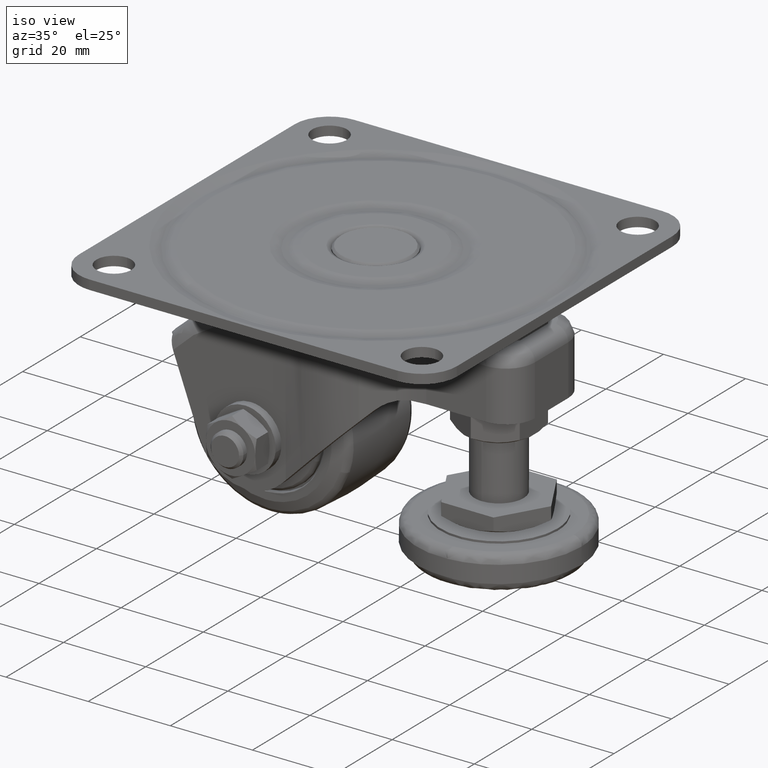
[diagram: clean part render]
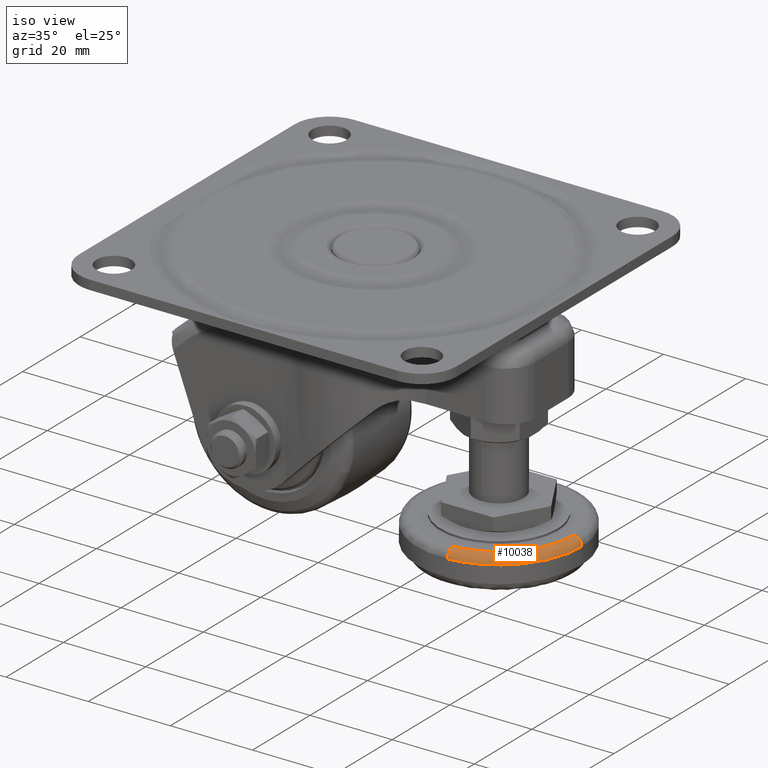
[diagram: same view with one face highlighted and labeled with its STEP entity id]
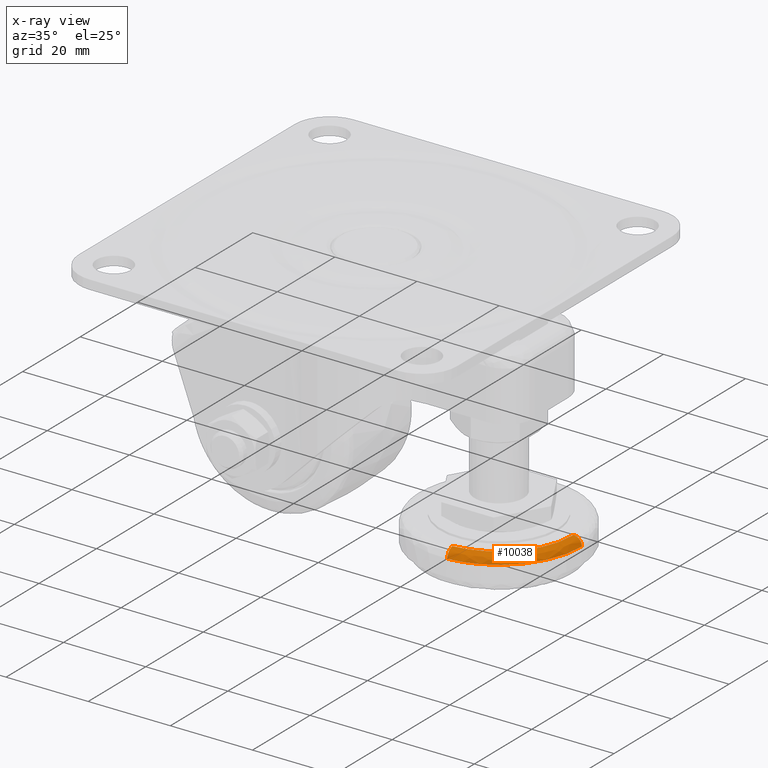
[diagram: x-ray of the same camera — body ghosted, the highlighted face saturated]
A machine part, iso view. The second image highlights one B-rep face of the part: STEP entity #10038.
The next image is the same camera in x-ray: the body ghosted, the highlighted face saturated — about 0% of this face is hidden behind the body in this view.
In plain terms, the highlighted face is a freeform B-spline surface patch.
Its self-contained STEP definition (entity closure, byte-faithful):
#9319=CARTESIAN_POINT('',(49.998387884075072,0.251320797758429,-52.999993999362772));
#9320=VERTEX_POINT('',#9319);
#9334=CARTESIAN_POINT('',(49.999966999999913,0.0,-52.999994000000001));
#9335=VERTEX_POINT('',#9334);
#9336=CARTESIAN_POINT('',(49.998387884075072,0.251320797758429,-52.999993999362765));
#9337=CARTESIAN_POINT('',(49.999966999999913,0.125665359929190,-52.999994000000001));
#9338=CARTESIAN_POINT('',(49.999966999999913,0.0,-52.999994000000001));
#9346=(BOUNDED_CURVE()B_SPLINE_CURVE(2,(#9336,#9337,#9338),.UNSPECIFIED.,.F.,.U.)B_SPLINE_CURVE_WITH_KNOTS((3,3),(0.497784295920121,0.500000000000000),.UNSPECIFIED.)CURVE()GEOMETRIC_REPRESENTATION_ITEM()RATIONAL_B_SPLINE_CURVE((0.994854295640313,0.997404141200424,1.0))REPRESENTATION_ITEM(''));
#9347=EDGE_CURVE('',#9320,#9335,#9346,.T.);
#9349=CARTESIAN_POINT('',(31.394632031528989,-19.951313476807229,-52.999993999373743));
#9350=VERTEX_POINT('',#9349);
#9351=CARTESIAN_POINT('',(49.999966999999913,0.0,-52.999994000000001));
#9352=CARTESIAN_POINT('',(49.999966999999906,-18.650736945294408,-52.999993999999994));
#9353=CARTESIAN_POINT('',(31.394632031528992,-19.951313476807229,-52.999993999373743));
#9361=(BOUNDED_CURVE()B_SPLINE_CURVE(2,(#9351,#9352,#9353),.UNSPECIFIED.,.F.,.U.)B_SPLINE_CURVE_WITH_KNOTS((3,3),(0.500000000000000,0.737833686534785),.UNSPECIFIED.)CURVE()GEOMETRIC_REPRESENTATION_ITEM()RATIONAL_B_SPLINE_CURVE((1.0,0.721360504034228,0.972879876386328))REPRESENTATION_ITEM(''));
#9362=EDGE_CURVE('',#9335,#9350,#9361,.T.);
#9919=CARTESIAN_POINT('',(31.255165529792428,-17.956182140352549,-50.999994000000001));
#9920=VERTEX_POINT('',#9919);
#9921=CARTESIAN_POINT('',(31.255165529792421,-17.956182140352542,-50.999993999999987));
#9922=CARTESIAN_POINT('',(31.394632031421377,-19.951313475559175,-50.999994022594947));
#9923=CARTESIAN_POINT('',(31.394632031528992,-19.951313476807229,-52.999993999373743));
#9931=(BOUNDED_CURVE()B_SPLINE_CURVE(2,(#9921,#9922,#9923),.UNSPECIFIED.,.F.,.U.)B_SPLINE_CURVE_WITH_KNOTS((3,3),(-1.725134631696309,-0.274865357360410),.UNSPECIFIED.)CURVE()GEOMETRIC_REPRESENTATION_ITEM()RATIONAL_B_SPLINE_CURVE((0.863472071332028,0.610566961993592,0.863472075148714))REPRESENTATION_ITEM(''));
#9932=EDGE_CURVE('',#9920,#9350,#9931,.T.);
#9951=CARTESIAN_POINT('',(47.998545805124607,0.226188718600673,-50.999994000000001));
#9952=VERTEX_POINT('',#9951);
#9968=CARTESIAN_POINT('',(47.998545805124607,0.226188718600673,-50.999994000000001));
#9969=CARTESIAN_POINT('',(49.998387882801850,0.251320797651023,-50.999994018928149));
#9970=CARTESIAN_POINT('',(49.998387884075079,0.251320797758429,-52.999993999362779));
#9978=(BOUNDED_CURVE()B_SPLINE_CURVE(2,(#9968,#9969,#9970),.UNSPECIFIED.,.F.,.U.)B_SPLINE_CURVE_WITH_KNOTS((3,3),(-1.725134633576454,-0.274865357371667),.UNSPECIFIED.)CURVE()GEOMETRIC_REPRESENTATION_ITEM()RATIONAL_B_SPLINE_CURVE((0.883342146190229,0.624617225975575,0.883342149419900))REPRESENTATION_ITEM(''));
#9979=EDGE_CURVE('',#9952,#9320,#9978,.T.);
#9987=CARTESIAN_POINT('',(47.859480746937201,0.224441082965687,-51.004835395278690));
#9988=CARTESIAN_POINT('',(48.071432455690896,-16.641252158909758,-51.004835395278675));
#9989=CARTESIAN_POINT('',(31.245467304598336,-17.817444655954748,-51.004835395278697));
#9990=CARTESIAN_POINT('',(50.153448319038233,0.253269447134271,-50.844917736149355));
#9991=CARTESIAN_POINT('',(50.392624192661280,-18.778739962475626,-50.844917736149362));
#9992=CARTESIAN_POINT('',(31.405445753635369,-20.106008658178727,-50.844917736149355));
#9993=CARTESIAN_POINT('',(49.993547102387971,0.251259963408059,-53.139066710610727));
#9994=CARTESIAN_POINT('',(50.230825313141708,-18.629746182213836,-53.139066710610713));
#9995=CARTESIAN_POINT('',(31.394294441406753,-19.946484097854444,-53.139066710610734));
#10003=(BOUNDED_SURFACE()B_SPLINE_SURFACE(2,2,((#9987,#9990,#9993),(#9988,#9991,#9994),(#9989,#9992,#9995)),.UNSPECIFIED.,.F.,.F.,.U.)B_SPLINE_SURFACE_WITH_KNOTS((3,3),(3,3),(0.0,31.795173028541889),(0.0,3.644748190915314),.UNSPECIFIED.)GEOMETRIC_REPRESENTATION_ITEM()RATIONAL_B_SPLINE_SURFACE(((0.910480171687553,0.597479547114022,0.910479481646444),(0.654473642262216,0.429481747693769,0.654473146245135),(0.889999649333526,0.584039723160402,0.889998974814340)))REPRESENTATION_ITEM('')SURFACE());
#10004=ORIENTED_EDGE('',*,*,#9362,.F.);
#10005=ORIENTED_EDGE('',*,*,#9347,.F.);
#10006=ORIENTED_EDGE('',*,*,#9979,.F.);
#10007=CARTESIAN_POINT('',(47.999966999999899,0.0,-50.999994000000001));
#10008=VERTEX_POINT('',#10007);
#10009=CARTESIAN_POINT('',(47.998545805124607,0.226188718600673,-50.999994000000001));
#10010=CARTESIAN_POINT('',(47.999966999999906,0.113098824435491,-50.999994000000001));
#10011=CARTESIAN_POINT('',(47.999966999999899,0.0,-50.999994000000001));
#10019=(BOUNDED_CURVE()B_SPLINE_CURVE(2,(#10009,#10010,#10011),.UNSPECIFIED.,.F.,.U.)B_SPLINE_CURVE_WITH_KNOTS((3,3),(0.497784295910366,0.500000000000000),.UNSPECIFIED.)CURVE()GEOMETRIC_REPRESENTATION_ITEM()RATIONAL_B_SPLINE_CURVE((0.994854295617861,0.997404141188996,1.0))REPRESENTATION_ITEM(''));
#10020=EDGE_CURVE('',#9952,#10008,#10019,.T.);
#10021=ORIENTED_EDGE('',*,*,#10020,.T.);
#10022=CARTESIAN_POINT('',(47.999966999999899,0.0,-50.999994000000001));
#10023=CARTESIAN_POINT('',(47.999966999999891,-16.785663249587067,-50.999994000000001));
#10024=CARTESIAN_POINT('',(31.255165529792421,-17.956182140352542,-50.999994000000015));
#10032=(BOUNDED_CURVE()B_SPLINE_CURVE(2,(#10022,#10023,#10024),.UNSPECIFIED.,.F.,.U.)B_SPLINE_CURVE_WITH_KNOTS((3,3),(0.500000000000000,0.737833686522746),.UNSPECIFIED.)CURVE()GEOMETRIC_REPRESENTATION_ITEM()RATIONAL_B_SPLINE_CURVE((1.0,0.721360504048333,0.972879876360864))REPRESENTATION_ITEM(''));
#10033=EDGE_CURVE('',#10008,#9920,#10032,.T.);
#10034=ORIENTED_EDGE('',*,*,#10033,.T.);
#10035=ORIENTED_EDGE('',*,*,#9932,.T.);
#10036=EDGE_LOOP('',(#10004,#10005,#10006,#10021,#10034,#10035));
#10037=FACE_OUTER_BOUND('',#10036,.T.);
#10038=ADVANCED_FACE('',(#10037),#10003,.T.);